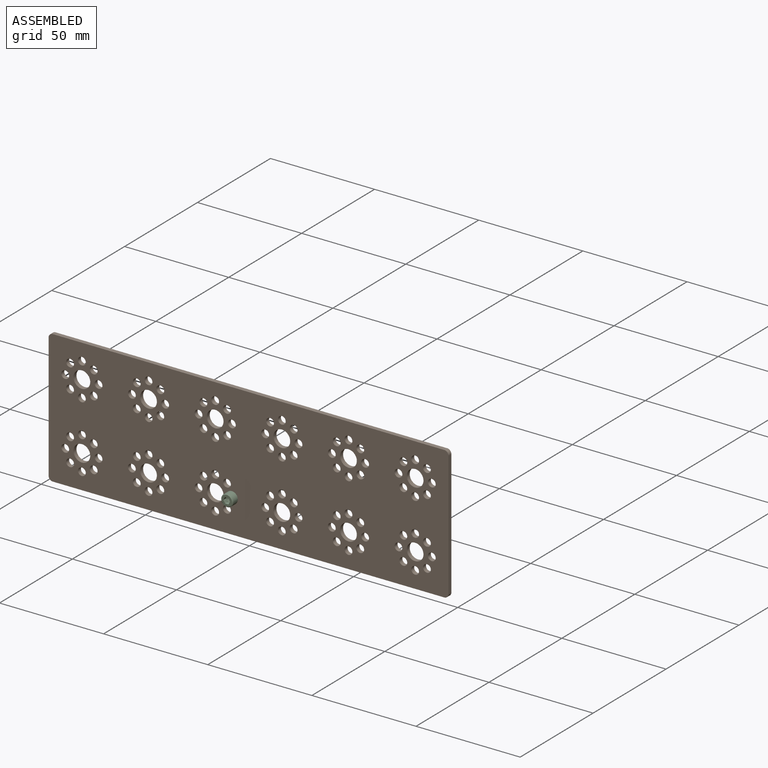
[diagram: assembled view]
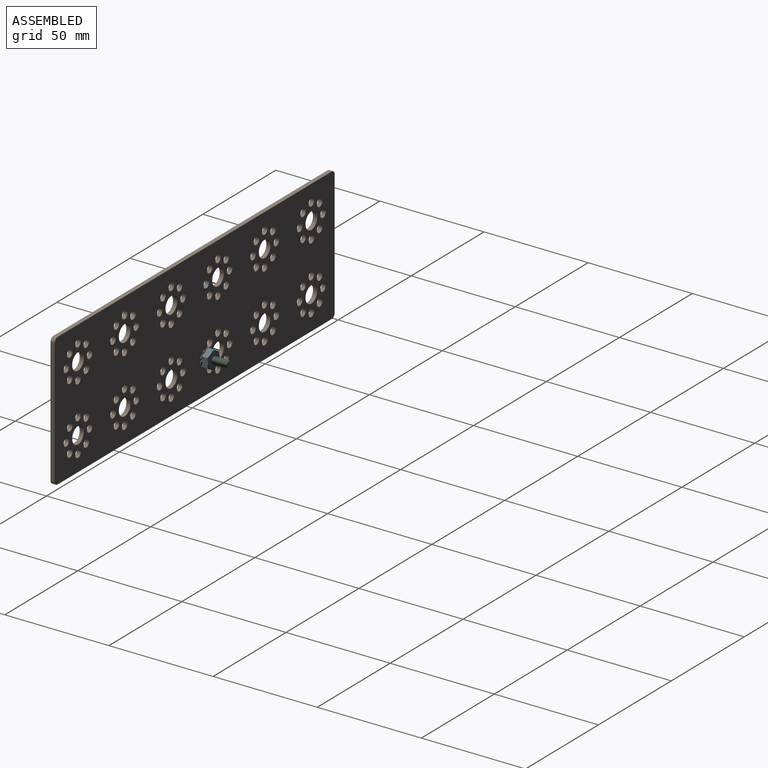
[diagram: assembled view, second angle]
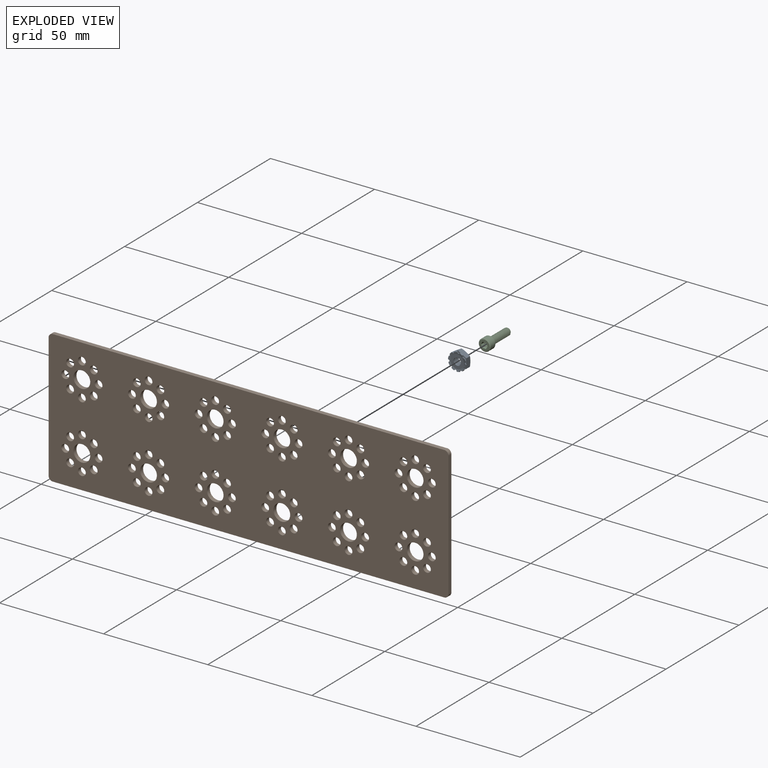
[diagram: exploded view]
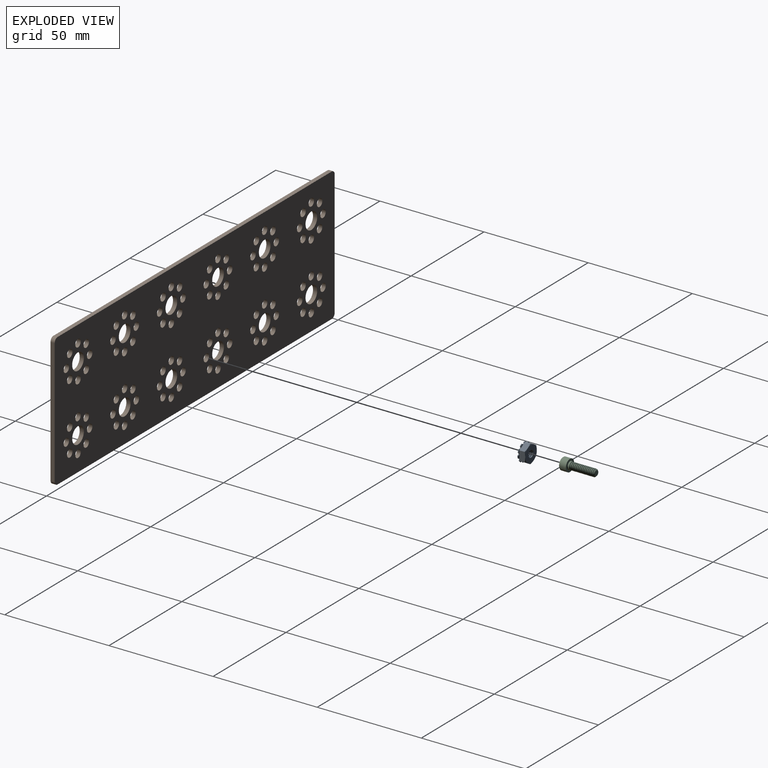
[diagram: exploded view, second angle]
ASSEMBLY  parts=3 mates=2
PART A: 74 faces, bbox 9.5x4x9.5 mm
  f0: cylinder r=0.56mm len=0.84mm, axis (0,-1,0), area 0.6mm2, adj f5,f6,f72,f73
  f1: cylinder r=0.56mm len=1.05mm, axis (0,-1,0), area 0.6mm2, adj f5,f6,f70,f71
  f2: cylinder r=0.56mm len=0.98mm, axis (0,-1,0), area 0.6mm2, adj f5,f6,f68,f69
  f3: cylinder r=0.56mm len=0.96mm, axis (0,-1,0), area 0.6mm2, adj f5,f6,f66,f67
  f4: cylinder r=2.27mm len=4.54mm, axis (0,1,0), area 1.5mm2, adj f32,f47
  f5: cone r=3.23mm half-angle=75deg, axis (0,-1,0), area 20mm2, adj f0,f1,f2,f3,f23,f24,f25,f26
  f6: cone r=4.37mm half-angle=75deg, axis (0,-1,0), area 19.3mm2, adj f0,f1,f2,f3,f23,f24,f25,f26
  f7: cone r=1.54mm half-angle=30deg, axis (0,1,0), area 2.6mm2, adj f22,f33
  f8: cylinder r=1.32mm len=2.65mm, axis (0,1,0), area 0.8mm2, adj f9,f14
  f9: cone r=1.75mm half-angle=60deg, axis (0,-1,0), area 4.8mm2, adj f8,f10
  f10: cylinder r=1.75mm len=3.51mm, axis (0,1,0), area 6.2mm2, adj f9,f46
  f11: cylinder r=1.32mm len=2.65mm, axis (0,1,0), area 0.8mm2, adj f12,f18
  f12: cone r=1.75mm half-angle=60deg, axis (0,-1,0), area 4.8mm2, adj f11,f13
  f13: cylinder r=1.75mm len=3.51mm, axis (0,1,0), area 2.2mm2, adj f12,f14
  f14: cone r=1.32mm half-angle=60deg, axis (0,1,0), area 4.8mm2, adj f8,f13
  f15: cylinder r=1.32mm len=2.65mm, axis (0,1,0), area 0.8mm2, adj f16,f20
  f16: cone r=1.75mm half-angle=60deg, axis (0,-1,0), area 4.8mm2, adj f15,f17
  f17: cylinder r=1.75mm len=3.51mm, axis (0,1,0), area 2.2mm2, adj f16,f18
  f18: cone r=1.32mm half-angle=60deg, axis (0,1,0), area 4.8mm2, adj f11,f17
  f19: cylinder r=1.75mm len=3.51mm, axis (0,1,0), area 2.2mm2, adj f20,f22
  f20: cone r=1.32mm half-angle=60deg, axis (0,1,0), area 4.8mm2, adj f15,f19
  f21: cone r=3.97mm half-angle=65deg, axis (0,-1,0), area 1.5mm2, adj f33,f34,f35
  f22: cone r=1.75mm half-angle=60deg, axis (0,-1,0), area 2.6mm2, adj f7,f19
  f23: cone r=4.26mm half-angle=15deg, axis (0,1,0), area 0.5mm2, adj f5,f6,f70,f73
  f24: cone r=4.26mm half-angle=15deg, axis (0,1,0), area 0.5mm2, adj f5,f6,f68,f71
  f25: cone r=4.26mm half-angle=15deg, axis (0,1,0), area 0.5mm2, adj f5,f6,f66,f69
  f26: cone r=4.26mm half-angle=15deg, axis (0,1,0), area 0.5mm2, adj f5,f6,f64,f67
  f27: cone r=4.26mm half-angle=15deg, axis (0,1,0), area 0.5mm2, adj f5,f6,f62,f65
  f28: cone r=4.26mm half-angle=15deg, axis (0,1,0), area 0.5mm2, adj f5,f6,f60,f63
  f29: cone r=4.26mm half-angle=15deg, axis (0,1,0), area 0.5mm2, adj f5,f6,f58,f61
  f30: cone r=4.26mm half-angle=15deg, axis (0,1,0), area 0.5mm2, adj f5,f6,f56,f59
  f31: cone r=4.26mm half-angle=15deg, axis (0,1,0), area 0.5mm2, adj f5,f6,f49,f57
  f32: plane 9.17x7.94mm, normal (0,-1,0), area 38.4mm2, adj f4,f34,f35,f36,f37,f38,f39
  f33: plane 7.94x7.94mm, normal (0,1,0), area 40.8mm2, adj f7,f21,f40,f41,f42,f43,f44
  f34: plane 4.33x3.14mm, normal (0.5,0,-0.87), area 12.3mm2, adj f21,f32,f35,f39,f43
  f35: plane 4.33x3.14mm, normal (-0.5,0,-0.87), area 12.3mm2, adj f21,f32,f34,f36,f42
  f36: plane 4.94x3.14mm, normal (-1,0,0), area 12.3mm2, adj f32,f35,f37,f41,f42
  f37: plane 4.33x3.14mm, normal (-0.5,0,0.87), area 12.3mm2, adj f32,f36,f38,f40,f41
  f38: plane 4.33x3.14mm, normal (0.5,0,0.87), area 12.3mm2, adj f32,f37,f39,f40,f44
  f39: plane 4.94x3.14mm, normal (1,0,0), area 12.3mm2, adj f32,f34,f38,f43,f44
  f40: cone r=3.97mm half-angle=65deg, axis (0,-1,0), area 1.5mm2, adj f33,f37,f38
  f41: cone r=3.97mm half-angle=65deg, axis (0,-1,0), area 1.5mm2, adj f33,f36,f37
  f42: cone r=3.97mm half-angle=65deg, axis (0,-1,0), area 1.5mm2, adj f33,f35,f36
  f43: cone r=3.97mm half-angle=65deg, axis (0,-1,0), area 1.5mm2, adj f33,f34,f39
  f44: cone r=3.97mm half-angle=65deg, axis (0,-1,0), area 1.5mm2, adj f33,f38,f39
  f45: cone r=4.26mm half-angle=15deg, axis (0,1,0), area 0.5mm2, adj f5,f6,f50,f72
  f46: plane 6.45x6.45mm, normal (0,-1,0), area 23mm2, adj f5,f10
  f47: plane 6.67x6.67mm, normal (0,1,0), area 18.8mm2, adj f4,f6
  f48: cylinder r=0.56mm len=1.06mm, axis (0,-1,0), area 0.6mm2, adj f5,f6,f49,f50
  f49: bspline ~0.49x0.29mm, area 0.2mm2, adj f5,f6,f31,f48
  f50: bspline ~0.5x0.35mm, area 0.2mm2, adj f5,f6,f45,f48
  f51: cylinder r=0.56mm len=0.96mm, axis (0,-1,0), area 0.6mm2, adj f5,f6,f56,f57
  f52: cylinder r=0.56mm len=0.98mm, axis (0,-1,0), area 0.6mm2, adj f5,f6,f58,f59
  f53: cylinder r=0.56mm len=1.05mm, axis (0,-1,0), area 0.6mm2, adj f5,f6,f60,f61
  f54: cylinder r=0.56mm len=0.84mm, axis (0,-1,0), area 0.6mm2, adj f5,f6,f62,f63
  f55: cylinder r=0.56mm len=1.06mm, axis (0,-1,0), area 0.6mm2, adj f5,f6,f64,f65
  f56: bspline ~0.5x0.4mm, area 0.2mm2, adj f5,f6,f30,f51
  f57: bspline ~0.49x0.37mm, area 0.2mm2, adj f5,f6,f31,f51
  f58: bspline ~0.49x0.36mm, area 0.2mm2, adj f5,f6,f29,f52
  f59: bspline ~0.49x0.39mm, area 0.2mm2, adj f5,f6,f30,f52
  f60: bspline ~0.49x0.36mm, area 0.2mm2, adj f5,f6,f28,f53
  f61: bspline ~0.5x0.3mm, area 0.2mm2, adj f5,f6,f29,f53
  f62: bspline ~0.49x0.4mm, area 0.2mm2, adj f5,f6,f27,f54
  f63: bspline ~0.5x0.4mm, area 0.2mm2, adj f5,f6,f28,f54
  f64: bspline ~0.49x0.29mm, area 0.2mm2, adj f5,f6,f26,f55
  f65: bspline ~0.5x0.35mm, area 0.2mm2, adj f5,f6,f27,f55
  f66: bspline ~0.5x0.4mm, area 0.2mm2, adj f3,f5,f6,f25
  f67: bspline ~0.49x0.37mm, area 0.2mm2, adj f3,f5,f6,f26
  f68: bspline ~0.49x0.36mm, area 0.2mm2, adj f2,f5,f6,f24
  f69: bspline ~0.49x0.39mm, area 0.2mm2, adj f2,f5,f6,f25
  f70: bspline ~0.49x0.36mm, area 0.2mm2, adj f1,f5,f6,f23
  f71: bspline ~0.5x0.3mm, area 0.2mm2, adj f1,f5,f6,f24
  f72: bspline ~0.49x0.4mm, area 0.2mm2, adj f0,f5,f6,f45
  f73: bspline ~0.5x0.4mm, area 0.2mm2, adj f0,f5,f6,f23
PART B: 118 faces, bbox 192x2x64 mm
  f0: cylinder r=1.85mm len=3.7mm, axis (0,1,0), area 23.2mm2, adj f112,f113
  f1: cylinder r=1.85mm len=3.7mm, axis (0,1,0), area 23.2mm2, adj f112,f113
  f2: cylinder r=1.85mm len=3.7mm, axis (0,1,0), area 23.2mm2, adj f112,f113
  f3: cylinder r=1.85mm len=3.7mm, axis (0,1,0), area 23.2mm2, adj f112,f113
  f4: cylinder r=1.85mm len=3.7mm, axis (0,1,0), area 23.2mm2, adj f112,f113
  f5: cylinder r=1.85mm len=3.7mm, axis (0,1,0), area 23.2mm2, adj f112,f113
  f6: cylinder r=1.85mm len=3.7mm, axis (0,1,0), area 23.2mm2, adj f112,f113
  f7: cylinder r=1.85mm len=3.7mm, axis (0,1,0), area 23.2mm2, adj f112,f113
  f8: cylinder r=4mm len=8mm, axis (0,1,0), area 50.3mm2, adj f112,f113
  f9: cylinder r=1.85mm len=3.7mm, axis (0,1,0), area 23.2mm2, adj f112,f113
  f10: cylinder r=1.85mm len=3.7mm, axis (0,1,0), area 23.2mm2, adj f112,f113
  f11: cylinder r=1.85mm len=3.7mm, axis (0,1,0), area 23.2mm2, adj f112,f113
  f12: cylinder r=1.85mm len=3.7mm, axis (0,1,0), area 23.2mm2, adj f112,f113
  f13: cylinder r=1.85mm len=3.7mm, axis (0,1,0), area 23.2mm2, adj f112,f113
  f14: cylinder r=1.85mm len=3.7mm, axis (0,1,0), area 23.2mm2, adj f112,f113
  f15: cylinder r=1.85mm len=3.7mm, axis (0,1,0), area 23.2mm2, adj f112,f113
  f16: cylinder r=1.85mm len=3.7mm, axis (0,1,0), area 23.2mm2, adj f112,f113
  f17: cylinder r=4mm len=8mm, axis (0,1,0), area 50.3mm2, adj f112,f113
  f18: cylinder r=1.85mm len=3.7mm, axis (0,1,0), area 23.2mm2, adj f112,f113
  f19: cylinder r=1.85mm len=3.7mm, axis (0,1,0), area 23.2mm2, adj f112,f113
  f20: cylinder r=1.85mm len=3.7mm, axis (0,1,0), area 23.2mm2, adj f112,f113
  f21: cylinder r=1.85mm len=3.7mm, axis (0,1,0), area 23.2mm2, adj f112,f113
  f22: cylinder r=1.85mm len=3.7mm, axis (0,1,0), area 23.2mm2, adj f112,f113
  f23: cylinder r=1.85mm len=3.7mm, axis (0,1,0), area 23.2mm2, adj f112,f113
  f24: cylinder r=1.85mm len=3.7mm, axis (0,1,0), area 23.2mm2, adj f112,f113
  f25: cylinder r=1.85mm len=3.7mm, axis (0,1,0), area 23.2mm2, adj f112,f113
  f26: cylinder r=4mm len=8mm, axis (0,1,0), area 50.3mm2, adj f112,f113
  f27: cylinder r=1.85mm len=3.7mm, axis (0,1,0), area 23.2mm2, adj f112,f113
  f28: cylinder r=1.85mm len=3.7mm, axis (0,1,0), area 23.2mm2, adj f112,f113
  f29: cylinder r=1.85mm len=3.7mm, axis (0,1,0), area 23.2mm2, adj f112,f113
  f30: cylinder r=1.85mm len=3.7mm, axis (0,1,0), area 23.2mm2, adj f112,f113
  f31: cylinder r=1.85mm len=3.7mm, axis (0,1,0), area 23.2mm2, adj f112,f113
  f32: cylinder r=1.85mm len=3.7mm, axis (0,1,0), area 23.2mm2, adj f112,f113
  f33: cylinder r=1.85mm len=3.7mm, axis (0,1,0), area 23.2mm2, adj f112,f113
  f34: cylinder r=1.85mm len=3.7mm, axis (0,1,0), area 23.2mm2, adj f112,f113
  f35: cylinder r=4mm len=8mm, axis (0,1,0), area 50.3mm2, adj f112,f113
  f36: cylinder r=1.85mm len=3.7mm, axis (0,1,0), area 23.2mm2, adj f112,f113
  f37: cylinder r=1.85mm len=3.7mm, axis (0,1,0), area 23.2mm2, adj f112,f113
  f38: cylinder r=1.85mm len=3.7mm, axis (0,1,0), area 23.2mm2, adj f112,f113
  f39: cylinder r=1.85mm len=3.7mm, axis (0,1,0), area 23.2mm2, adj f112,f113
  f40: cylinder r=1.85mm len=3.7mm, axis (0,1,0), area 23.2mm2, adj f112,f113
  f41: cylinder r=1.85mm len=3.7mm, axis (0,1,0), area 23.2mm2, adj f112,f113
  f42: cylinder r=1.85mm len=3.7mm, axis (0,1,0), area 23.2mm2, adj f112,f113
  f43: cylinder r=1.85mm len=3.7mm, axis (0,1,0), area 23.2mm2, adj f112,f113
  f44: cylinder r=4mm len=8mm, axis (0,1,0), area 50.3mm2, adj f112,f113
  f45: cylinder r=1.85mm len=3.7mm, axis (0,1,0), area 23.2mm2, adj f112,f113
  f46: cylinder r=1.85mm len=3.7mm, axis (0,1,0), area 23.2mm2, adj f112,f113
  f47: cylinder r=1.85mm len=3.7mm, axis (0,1,0), area 23.2mm2, adj f112,f113
  f48: cylinder r=1.85mm len=3.7mm, axis (0,1,0), area 23.2mm2, adj f112,f113
  f49: cylinder r=1.85mm len=3.7mm, axis (0,1,0), area 23.2mm2, adj f112,f113
  f50: cylinder r=1.85mm len=3.7mm, axis (0,1,0), area 23.2mm2, adj f112,f113
  f51: cylinder r=1.85mm len=3.7mm, axis (0,1,0), area 23.2mm2, adj f112,f113
  f52: cylinder r=1.85mm len=3.7mm, axis (0,1,0), area 23.2mm2, adj f112,f113
  f53: cylinder r=4mm len=8mm, axis (0,1,0), area 50.3mm2, adj f112,f113
  f54: cylinder r=1.85mm len=3.7mm, axis (0,1,0), area 23.2mm2, adj f112,f113
  f55: cylinder r=1.85mm len=3.7mm, axis (0,1,0), area 23.2mm2, adj f112,f113
  f56: cylinder r=1.85mm len=3.7mm, axis (0,1,0), area 23.2mm2, adj f112,f113
  f57: cylinder r=1.85mm len=3.7mm, axis (0,1,0), area 23.2mm2, adj f112,f113
  f58: cylinder r=1.85mm len=3.7mm, axis (0,1,0), area 23.2mm2, adj f112,f113
  f59: cylinder r=1.85mm len=3.7mm, axis (0,1,0), area 23.2mm2, adj f112,f113
  f60: cylinder r=1.85mm len=3.7mm, axis (0,1,0), area 23.2mm2, adj f112,f113
  f61: cylinder r=1.85mm len=3.7mm, axis (0,1,0), area 23.2mm2, adj f112,f113
  f62: cylinder r=4mm len=8mm, axis (0,1,0), area 50.3mm2, adj f112,f113
  f63: cylinder r=1.85mm len=3.7mm, axis (0,1,0), area 23.2mm2, adj f112,f113
  f64: cylinder r=1.85mm len=3.7mm, axis (0,1,0), area 23.2mm2, adj f112,f113
  f65: cylinder r=1.85mm len=3.7mm, axis (0,1,0), area 23.2mm2, adj f112,f113
  f66: cylinder r=1.85mm len=3.7mm, axis (0,1,0), area 23.2mm2, adj f112,f113
  f67: cylinder r=1.85mm len=3.7mm, axis (0,1,0), area 23.2mm2, adj f112,f113
  f68: cylinder r=1.85mm len=3.7mm, axis (0,1,0), area 23.2mm2, adj f112,f113
  f69: cylinder r=1.85mm len=3.7mm, axis (0,1,0), area 23.2mm2, adj f112,f113
  f70: cylinder r=1.85mm len=3.7mm, axis (0,1,0), area 23.2mm2, adj f112,f113
  f71: cylinder r=4mm len=8mm, axis (0,1,0), area 50.3mm2, adj f112,f113
  f72: cylinder r=1.85mm len=3.7mm, axis (0,1,0), area 23.2mm2, adj f112,f113
  f73: cylinder r=1.85mm len=3.7mm, axis (0,1,0), area 23.2mm2, adj f112,f113
  f74: cylinder r=1.85mm len=3.7mm, axis (0,1,0), area 23.2mm2, adj f112,f113
  f75: cylinder r=1.85mm len=3.7mm, axis (0,1,0), area 23.2mm2, adj f112,f113
  f76: cylinder r=1.85mm len=3.7mm, axis (0,1,0), area 23.2mm2, adj f112,f113
  f77: cylinder r=1.85mm len=3.7mm, axis (0,1,0), area 23.2mm2, adj f112,f113
  f78: cylinder r=1.85mm len=3.7mm, axis (0,1,0), area 23.2mm2, adj f112,f113
  f79: cylinder r=1.85mm len=3.7mm, axis (0,1,0), area 23.2mm2, adj f112,f113
  f80: cylinder r=4mm len=8mm, axis (0,1,0), area 50.3mm2, adj f112,f113
  f81: cylinder r=1.85mm len=3.7mm, axis (0,1,0), area 23.2mm2, adj f112,f113
  f82: cylinder r=1.85mm len=3.7mm, axis (0,1,0), area 23.2mm2, adj f112,f113
  f83: cylinder r=1.85mm len=3.7mm, axis (0,1,0), area 23.2mm2, adj f112,f113
  f84: cylinder r=1.85mm len=3.7mm, axis (0,1,0), area 23.2mm2, adj f112,f113
  f85: cylinder r=1.85mm len=3.7mm, axis (0,1,0), area 23.2mm2, adj f112,f113
  f86: cylinder r=1.85mm len=3.7mm, axis (0,1,0), area 23.2mm2, adj f112,f113
  f87: cylinder r=1.85mm len=3.7mm, axis (0,1,0), area 23.2mm2, adj f112,f113
  f88: cylinder r=1.85mm len=3.7mm, axis (0,1,0), area 23.2mm2, adj f112,f113
  f89: cylinder r=4mm len=8mm, axis (0,1,0), area 50.3mm2, adj f112,f113
  f90: cylinder r=1.85mm len=3.7mm, axis (0,1,0), area 23.2mm2, adj f112,f113
  f91: cylinder r=1.85mm len=3.7mm, axis (0,1,0), area 23.2mm2, adj f112,f113
  f92: cylinder r=1.85mm len=3.7mm, axis (0,1,0), area 23.2mm2, adj f112,f113
  f93: cylinder r=1.85mm len=3.7mm, axis (0,1,0), area 23.2mm2, adj f112,f113
  f94: cylinder r=1.85mm len=3.7mm, axis (0,1,0), area 23.2mm2, adj f112,f113
  f95: cylinder r=1.85mm len=3.7mm, axis (0,1,0), area 23.2mm2, adj f112,f113
  f96: cylinder r=1.85mm len=3.7mm, axis (0,1,0), area 23.2mm2, adj f112,f113
  f97: cylinder r=1.85mm len=3.7mm, axis (0,1,0), area 23.2mm2, adj f112,f113
  f98: cylinder r=4mm len=8mm, axis (0,1,0), area 50.3mm2, adj f112,f113
  f99: cylinder r=1.85mm len=3.7mm, axis (0,1,0), area 23.2mm2, adj f112,f113
  f100: cylinder r=1.85mm len=3.7mm, axis (0,1,0), area 23.2mm2, adj f112,f113
  f101: cylinder r=1.85mm len=3.7mm, axis (0,1,0), area 23.2mm2, adj f112,f113
  f102: cylinder r=1.85mm len=3.7mm, axis (0,1,0), area 23.2mm2, adj f112,f113
  f103: cylinder r=1.85mm len=3.7mm, axis (0,1,0), area 23.2mm2, adj f112,f113
  f104: cylinder r=1.85mm len=3.7mm, axis (0,1,0), area 23.2mm2, adj f112,f113
  f105: cylinder r=1.85mm len=3.7mm, axis (0,1,0), area 23.2mm2, adj f112,f113
  f106: cylinder r=1.85mm len=3.7mm, axis (0,1,0), area 23.2mm2, adj f112,f113
  f107: cylinder r=4mm len=8mm, axis (0,1,0), area 50.3mm2, adj f112,f113
  f108: plane 60x2mm, normal (-1,0,0), area 120mm2, adj f112,f113,f114,f115
  f109: plane 188x2mm, normal (0,0,1), area 376mm2, adj f112,f113,f114,f116
  f110: plane 60x2mm, normal (1,0,0), area 120mm2, adj f112,f113,f116,f117
  f111: plane 188x2mm, normal (0,0,-1), area 376mm2, adj f112,f113,f115,f117
  f112: plane 192x64mm, normal (0,1,0), area 10649.2mm2, adj f0,f1,f2,f3,f4,f5,f6,f7
  f113: plane 192x64mm, normal (0,-1,0), area 10649.2mm2, adj f0,f1,f2,f3,f4,f5,f6,f7
  f114: cylinder r=2mm len=2mm, axis (0,-1,0), area 6.3mm2, adj f108,f109,f112,f113
  f115: cylinder r=2mm len=2mm, axis (0,-1,0), area 6.3mm2, adj f108,f111,f112,f113
  f116: cylinder r=2mm len=2mm, axis (0,-1,0), area 6.3mm2, adj f109,f110,f112,f113
  f117: cylinder r=2mm len=2mm, axis (0,-1,0), area 6.3mm2, adj f110,f111,f112,f113
PART C: 26 faces, bbox 16.5x5.7x5.7 mm
  f0: cone r=1.38mm half-angle=60deg, axis (-1,0,0), area 7mm2, adj f15,f16,f17,f18,f19,f20
  f1: torus R=2.01mm, axis (1,0,0), area 4.6mm2, adj f2,f7
  f2: cylinder r=1.75mm len=11.97mm, axis (-1,0,0), area 19.8mm2, adj f1,f5,f22,f24,f25
  f3: cylinder r=2.87mm len=5.74mm, axis (-1,0,0), area 56.8mm2, adj f4,f7
  f4: cone r=2.51mm half-angle=45deg, axis (1,0,0), area 8.5mm2, adj f3,f6
  f5: cone r=1.28mm half-angle=45deg, axis (-1,0,0), area 3mm2, adj f2,f8,f21,f22,f23,f24
  f6: plane 5.03x5.03mm, normal (-1,0,0), area 13.2mm2, adj f4,f9,f10,f11,f12,f13,f14
  f7: plane 5.74x5.74mm, normal (1,0,0), area 13.2mm2, adj f1,f3
  f8: plane 2.56x2.56mm, normal (1,0,0), area 5.1mm2, adj f5
  f9: plane 1.63x1.38mm, normal (0,-0.87,-0.5), area 2.6mm2, adj f6,f10,f14,f18,f19
  f10: plane 1.63x1.6mm, normal (0,0,-1), area 2.6mm2, adj f6,f9,f11,f17,f18
  f11: plane 1.63x1.38mm, normal (0,0.87,-0.5), area 2.6mm2, adj f6,f10,f12,f16,f17
  f12: plane 1.63x1.38mm, normal (0,0.87,0.5), area 2.6mm2, adj f6,f11,f13,f15,f16
  f13: plane 1.63x1.6mm, normal (0,0,1), area 2.6mm2, adj f6,f12,f14,f15,f20
  f14: plane 1.63x1.38mm, normal (0,-0.87,0.5), area 2.6mm2, adj f6,f9,f13,f19,f20
  f15: plane 1.2x0.69mm, normal (-1,0,0), area 0.1mm2, adj f0,f12,f13
  f16: plane 1.38x0.4mm, normal (-1,0,0), area 0.1mm2, adj f0,f11,f12
  f17: plane 1.2x0.69mm, normal (-1,0,0), area 0.1mm2, adj f0,f10,f11
  f18: plane 1.2x0.69mm, normal (-1,0,0), area 0.1mm2, adj f0,f9,f10
  f19: plane 1.38x0.4mm, normal (-1,0,0), area 0.1mm2, adj f0,f9,f14
  f20: plane 1.2x0.69mm, normal (-1,0,0), area 0.1mm2, adj f0,f13,f14
  f21: plane 0.12x0.12mm, normal (0,0,-1), area 0mm2, adj f5,f22,f23
  f22: bspline ~12.35x3.51mm, area 73mm2, adj f2,f5,f21,f23,f25
  f23: cylinder r=1.32mm len=12.16mm, axis (1,0,0), area 30mm2, adj f5,f21,f22,f24,f25
  f24: bspline ~12.26x3.51mm, area 70.2mm2, adj f2,f5,f23,f25
  f25: plane 0.69x0.43mm, normal (0,1,0), area 0.2mm2, adj f2,f22,f23,f24
PLACE A t=(-7.89,3.4,-15.77)mm
PLACE B t=(12.61,-3.01,-4.17)mm
PLACE C rot(axis=(0,0,1),90deg) t=(-7.89,-4.29,-15.77)mm
MATE fastened A.f4 <-> B.f103  axis (0,-1,0) through (-7.89,1.5,-15.77)mm
MATE fastened C.f0 <-> B.f103  axis (0,1,0) through (-7.89,-0.78,-15.77)mm
